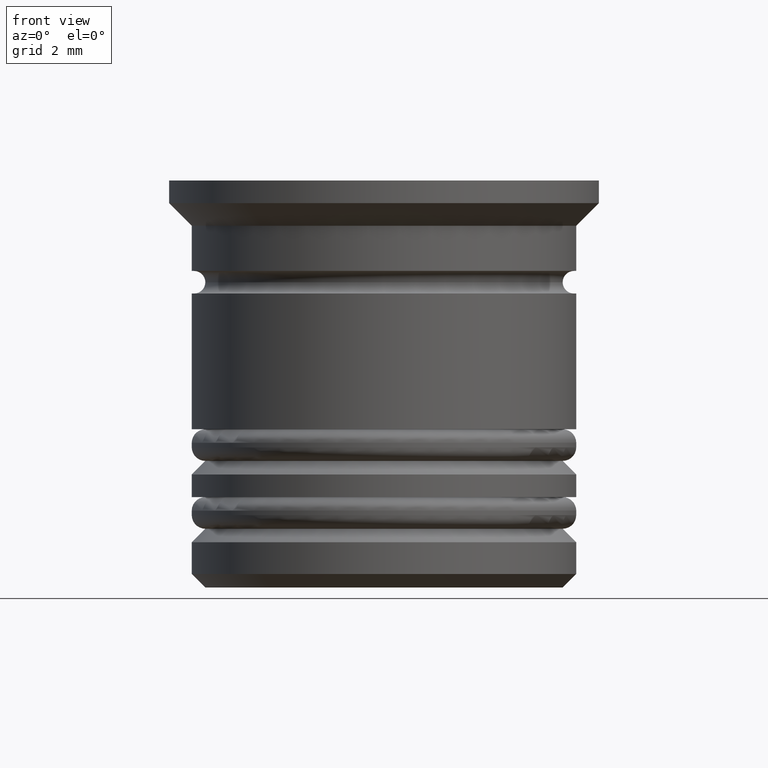
[diagram: clean part render]
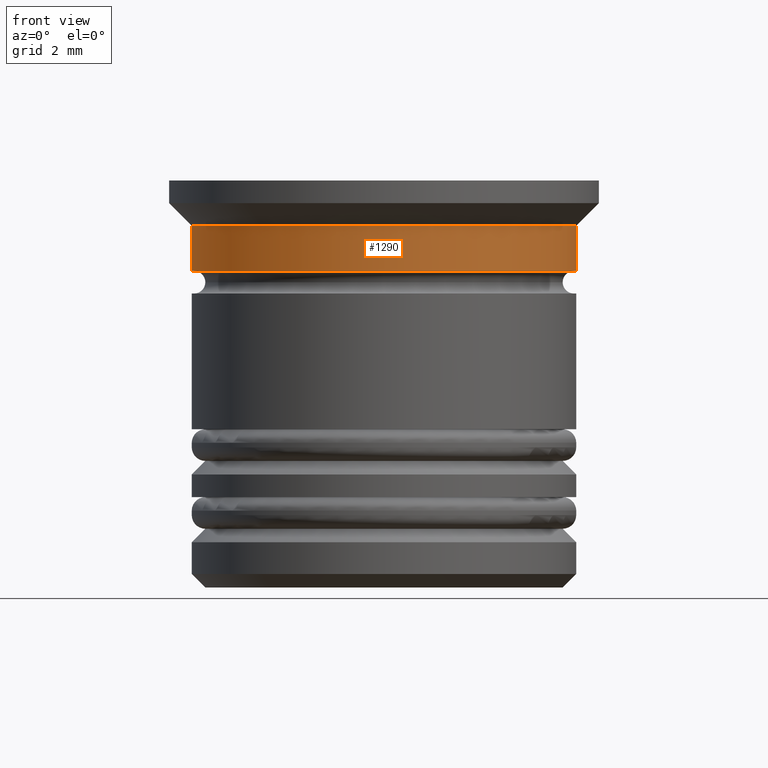
[diagram: same view with one face highlighted and labeled with its STEP entity id]
A machine part, front view. The second image highlights one B-rep face of the part: STEP entity #1290.
In plain terms, the highlighted cylindrical surface (partial cylindrical patch) has radius 4.25 mm, axis along (-0, -0, 1).
Its self-contained STEP definition (entity closure, byte-faithful):
#34 = ORIENTED_EDGE ( 'NONE', *, *, #1566, .F. ) ;
#46 = DIRECTION ( 'NONE',  ( -0.000000000000000000, -0.000000000000000000, 1.000000000000000000 ) ) ;
#62 = CARTESIAN_POINT ( 'NONE',  ( 4.249999999999999112, 0.000000000000000000, -0.9999999999999997780 ) ) ;
#111 = EDGE_LOOP ( 'NONE', ( #34, #1692, #1093, #664 ) ) ;
#256 = CARTESIAN_POINT ( 'NONE',  ( -4.250000000000000000, 5.204748896376250699E-16, 0.000000000000000000 ) ) ;
#287 = CIRCLE ( 'NONE', #1423, 4.250000000000000000 ) ;
#420 = VERTEX_POINT ( 'NONE', #573 ) ;
#468 = EDGE_CURVE ( 'NONE', #420, #1871, #287, .T. ) ;
#558 = VECTOR ( 'NONE', #2028, 1000.000000000000000 ) ;
#559 = DIRECTION ( 'NONE',  ( -0.000000000000000000, -0.000000000000000000, 1.000000000000000000 ) ) ;
#573 = CARTESIAN_POINT ( 'NONE',  ( -4.250000000000000000, 5.204748896376250699E-16, -2.000000000000000888 ) ) ;
#608 = LINE ( 'NONE', #1689, #558 ) ;
#660 = CARTESIAN_POINT ( 'NONE',  ( 0.000000000000000000, 0.000000000000000000, -2.000000000000000888 ) ) ;
#664 = ORIENTED_EDGE ( 'NONE', *, *, #1756, .F. ) ;
#668 = DIRECTION ( 'NONE',  ( 1.000000000000000000, 0.000000000000000000, 0.000000000000000000 ) ) ;
#713 = FACE_OUTER_BOUND ( 'NONE', #111, .T. ) ;
#731 = DIRECTION ( 'NONE',  ( -0.000000000000000000, -0.000000000000000000, 1.000000000000000000 ) ) ;
#781 = VERTEX_POINT ( 'NONE', #1672 ) ;
#935 = CIRCLE ( 'NONE', #1600, 4.249999999999999112 ) ;
#979 = CARTESIAN_POINT ( 'NONE',  ( 4.250000000000000000, 0.000000000000000000, -2.000000000000000888 ) ) ;
#1093 = ORIENTED_EDGE ( 'NONE', *, *, #2035, .T. ) ;
#1142 = DIRECTION ( 'NONE',  ( -0.000000000000000000, -0.000000000000000000, 1.000000000000000000 ) ) ;
#1195 = DIRECTION ( 'NONE',  ( 1.000000000000000000, 0.000000000000000000, 0.000000000000000000 ) ) ;
#1290 = ADVANCED_FACE ( 'NONE', ( #713 ), #1340, .T. ) ;
#1340 = CYLINDRICAL_SURFACE ( 'NONE', #1528, 4.250000000000000000 ) ;
#1423 = AXIS2_PLACEMENT_3D ( 'NONE', #660, #1142, #1751 ) ;
#1528 = AXIS2_PLACEMENT_3D ( 'NONE', #1966, #559, #1195 ) ;
#1566 = EDGE_CURVE ( 'NONE', #420, #781, #1656, .T. ) ;
#1600 = AXIS2_PLACEMENT_3D ( 'NONE', #1761, #46, #668 ) ;
#1609 = VERTEX_POINT ( 'NONE', #62 ) ;
#1656 = LINE ( 'NONE', #256, #1771 ) ;
#1672 = CARTESIAN_POINT ( 'NONE',  ( -4.249999999999999112, 5.204748896376249713E-16, -0.9999999999999997780 ) ) ;
#1689 = CARTESIAN_POINT ( 'NONE',  ( 4.250000000000000000, 0.000000000000000000, 0.000000000000000000 ) ) ;
#1692 = ORIENTED_EDGE ( 'NONE', *, *, #468, .T. ) ;
#1751 = DIRECTION ( 'NONE',  ( 1.000000000000000000, 0.000000000000000000, 0.000000000000000000 ) ) ;
#1756 = EDGE_CURVE ( 'NONE', #781, #1609, #935, .T. ) ;
#1761 = CARTESIAN_POINT ( 'NONE',  ( 0.000000000000000000, 0.000000000000000000, -0.9999999999999997780 ) ) ;
#1771 = VECTOR ( 'NONE', #731, 1000.000000000000000 ) ;
#1871 = VERTEX_POINT ( 'NONE', #979 ) ;
#1966 = CARTESIAN_POINT ( 'NONE',  ( 0.000000000000000000, 0.000000000000000000, 0.000000000000000000 ) ) ;
#2028 = DIRECTION ( 'NONE',  ( -0.000000000000000000, -0.000000000000000000, 1.000000000000000000 ) ) ;
#2035 = EDGE_CURVE ( 'NONE', #1871, #1609, #608, .T. ) ;